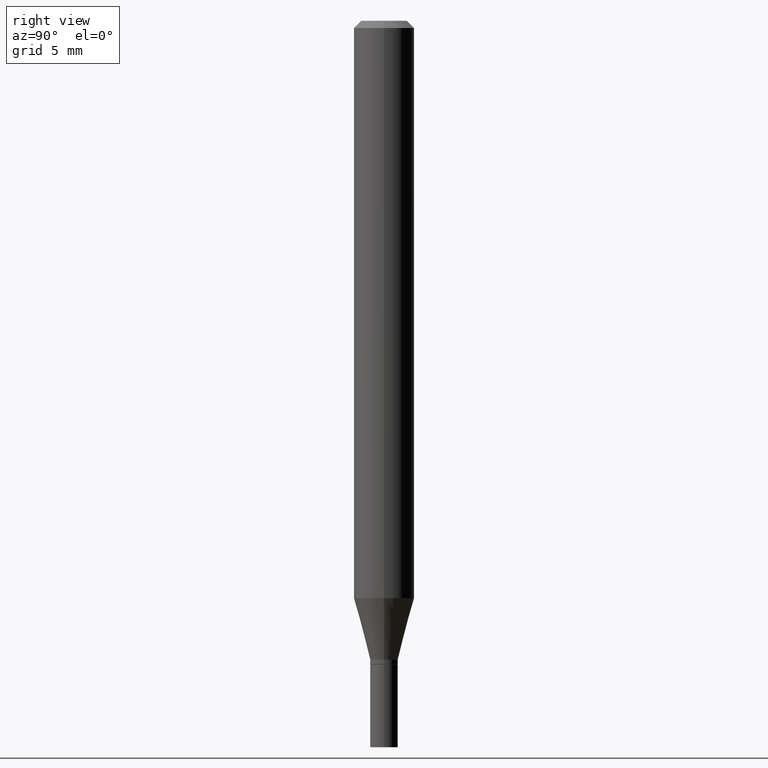
[diagram: clean part render]
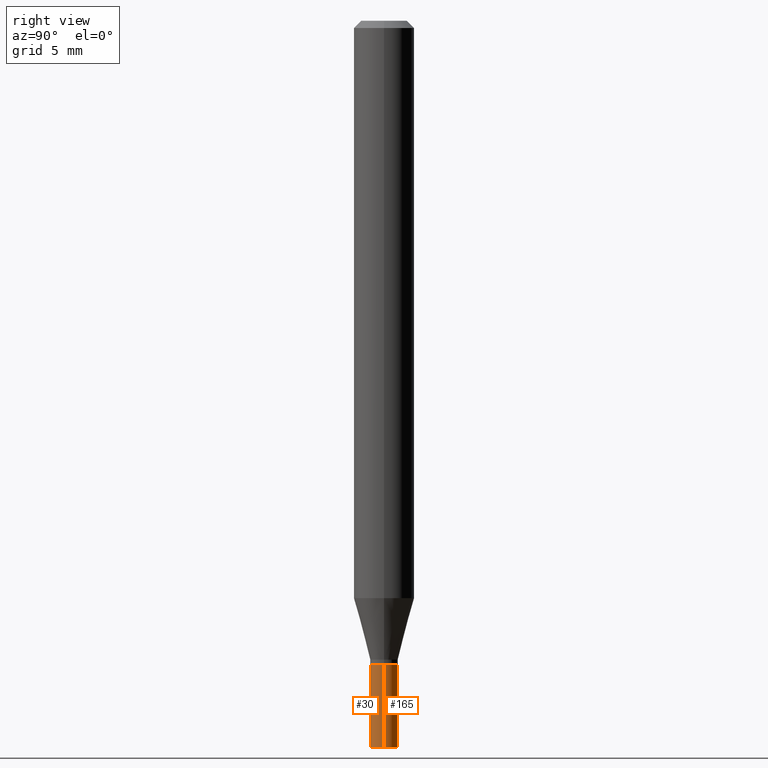
[diagram: same view with one multi-face feature highlighted, each face labeled with its STEP entity id]
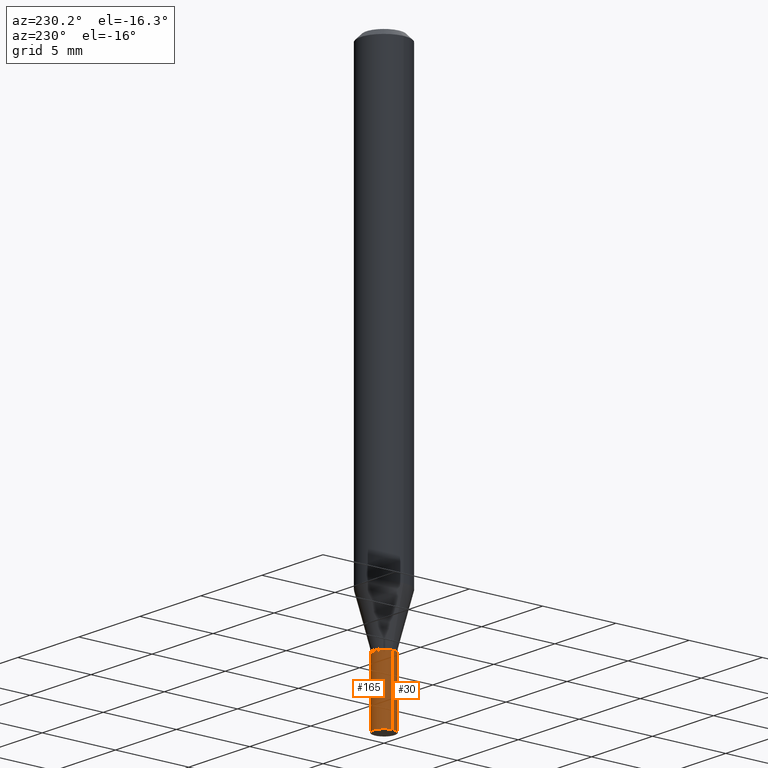
[diagram: same view with one multi-face feature highlighted, each face labeled with its STEP entity id]
A machine part, right view. The highlighted faces form ONE feature: a constant-radius fillet chain: 2 tangent blend faces with common blend radius 0.7239 mm. The faces share edges in the B-rep.
A second angle (auxiliary view) of the same feature is appended — it is thin or edge-on in the first view.
Their STEP definitions:
[1] entity #30 (Cylinder):
#20 = DIRECTION ( 'NONE',  ( -2.445468806185136877E-29, 3.491481338843145188E-15, 1.000000000000000000 ) ) ;
#30 = ADVANCED_FACE ( 'NONE', ( #298 ), #156, .T. ) ;
#55 = LINE ( 'NONE', #238, #309 ) ;
#63 = DIRECTION ( 'NONE',  ( -2.445468806185136877E-29, 3.491481338843145188E-15, 1.000000000000000000 ) ) ;
#64 = VERTEX_POINT ( 'NONE', #263 ) ;
#66 = CARTESIAN_POINT ( 'NONE',  ( 0.02850000000000000103, -5.436236444578777472E-15, -1.500000000000000222 ) ) ;
#80 = ORIENTED_EDGE ( 'NONE', *, *, #170, .T. ) ;
#86 = CIRCLE ( 'NONE', #455, 0.02850000000000000103 ) ;
#87 = VECTOR ( 'NONE', #63, 39.37007874015748143 ) ;
#96 = CARTESIAN_POINT ( 'NONE',  ( 3.250028043420046945E-29, -4.640178699322541079E-15, -1.329000000000000181 ) ) ;
#112 = ORIENTED_EDGE ( 'NONE', *, *, #385, .F. ) ;
#134 = DIRECTION ( 'NONE',  ( -2.445468806185136597E-29, 3.491481338843145583E-15, 1.000000000000000000 ) ) ;
#138 = VERTEX_POINT ( 'NONE', #384 ) ;
#145 = CARTESIAN_POINT ( 'NONE',  ( -0.02850000000000000103, 2.025046796916285603E-16, -1.401896500722648086E-30 ) ) ;
#156 = CYLINDRICAL_SURFACE ( 'NONE', #332, 0.02850000000000000103 ) ;
#164 = DIRECTION ( 'NONE',  ( -2.445468806185136597E-29, 3.491481338843145583E-15, 1.000000000000000000 ) ) ;
#170 = EDGE_CURVE ( 'NONE', #64, #400, #86, .T. ) ;
#183 = EDGE_CURVE ( 'NONE', #400, #387, #55, .T. ) ;
#220 = EDGE_CURVE ( 'NONE', #138, #387, #378, .T. ) ;
#238 = CARTESIAN_POINT ( 'NONE',  ( 0.02850000000000000103, -1.990144363140586052E-16, 1.389710381101841869E-30 ) ) ;
#263 = CARTESIAN_POINT ( 'NONE',  ( -0.02850000000000000103, -4.736195674102000895E-15, -1.500000000000000222 ) ) ;
#280 = ORIENTED_EDGE ( 'NONE', *, *, #183, .T. ) ;
#298 = FACE_OUTER_BOUND ( 'NONE', #361, .T. ) ;
#309 = VECTOR ( 'NONE', #20, 39.37007874015748143 ) ;
#313 = CARTESIAN_POINT ( 'NONE',  ( 3.668203209277704895E-29, -5.237222008264718177E-15, -1.500000000000000222 ) ) ;
#332 = AXIS2_PLACEMENT_3D ( 'NONE', #445, #443, #408 ) ;
#344 = AXIS2_PLACEMENT_3D ( 'NONE', #96, #164, #458 ) ;
#355 = CARTESIAN_POINT ( 'NONE',  ( 0.02850000000000000103, -4.839193135636600375E-15, -1.329000000000000181 ) ) ;
#361 = EDGE_LOOP ( 'NONE', ( #112, #80, #280, #398 ) ) ;
#377 = DIRECTION ( 'NONE',  ( 1.000000000000000000, -6.982962677686280910E-15, 0.000000000000000000 ) ) ;
#378 = CIRCLE ( 'NONE', #344, 0.02850000000000000103 ) ;
#384 = CARTESIAN_POINT ( 'NONE',  ( -0.02850000000000000103, -4.736195674102000895E-15, -1.329000000000000181 ) ) ;
#385 = EDGE_CURVE ( 'NONE', #64, #138, #389, .T. ) ;
#387 = VERTEX_POINT ( 'NONE', #355 ) ;
#389 = LINE ( 'NONE', #145, #87 ) ;
#398 = ORIENTED_EDGE ( 'NONE', *, *, #220, .F. ) ;
#400 = VERTEX_POINT ( 'NONE', #66 ) ;
#408 = DIRECTION ( 'NONE',  ( 1.000000000000000000, -6.982962677686266711E-15, 4.876176775795936353E-29 ) ) ;
#443 = DIRECTION ( 'NONE',  ( -2.445468806185136597E-29, 3.491481338843145583E-15, 1.000000000000000000 ) ) ;
#445 = CARTESIAN_POINT ( 'NONE',  ( 0.000000000000000000, 0.000000000000000000, 0.000000000000000000 ) ) ;
#455 = AXIS2_PLACEMENT_3D ( 'NONE', #313, #134, #377 ) ;
#458 = DIRECTION ( 'NONE',  ( 1.000000000000000000, -6.982962677686280910E-15, 0.000000000000000000 ) ) ;
[2] entity #165 (Cylinder):
#3 = AXIS2_PLACEMENT_3D ( 'NONE', #456, #233, #277 ) ;
#7 = ORIENTED_EDGE ( 'NONE', *, *, #49, .F. ) ;
#9 = DIRECTION ( 'NONE',  ( 1.000000000000000000, -6.982962677686280910E-15, 0.000000000000000000 ) ) ;
#20 = DIRECTION ( 'NONE',  ( -2.445468806185136877E-29, 3.491481338843145188E-15, 1.000000000000000000 ) ) ;
#36 = AXIS2_PLACEMENT_3D ( 'NONE', #152, #294, #226 ) ;
#47 = EDGE_CURVE ( 'NONE', #400, #64, #461, .T. ) ;
#49 = EDGE_CURVE ( 'NONE', #387, #138, #239, .T. ) ;
#55 = LINE ( 'NONE', #238, #309 ) ;
#62 = CYLINDRICAL_SURFACE ( 'NONE', #3, 0.02850000000000000103 ) ;
#63 = DIRECTION ( 'NONE',  ( -2.445468806185136877E-29, 3.491481338843145188E-15, 1.000000000000000000 ) ) ;
#64 = VERTEX_POINT ( 'NONE', #263 ) ;
#66 = CARTESIAN_POINT ( 'NONE',  ( 0.02850000000000000103, -5.436236444578777472E-15, -1.500000000000000222 ) ) ;
#87 = VECTOR ( 'NONE', #63, 39.37007874015748143 ) ;
#98 = ORIENTED_EDGE ( 'NONE', *, *, #47, .T. ) ;
#115 = DIRECTION ( 'NONE',  ( -2.445468806185136597E-29, 3.491481338843145583E-15, 1.000000000000000000 ) ) ;
#138 = VERTEX_POINT ( 'NONE', #384 ) ;
#145 = CARTESIAN_POINT ( 'NONE',  ( -0.02850000000000000103, 2.025046796916285603E-16, -1.401896500722648086E-30 ) ) ;
#152 = CARTESIAN_POINT ( 'NONE',  ( 3.250028043420046945E-29, -4.640178699322541079E-15, -1.329000000000000181 ) ) ;
#165 = ADVANCED_FACE ( 'NONE', ( #347 ), #62, .T. ) ;
#183 = EDGE_CURVE ( 'NONE', #400, #387, #55, .T. ) ;
#226 = DIRECTION ( 'NONE',  ( 1.000000000000000000, -6.982962677686280910E-15, 0.000000000000000000 ) ) ;
#233 = DIRECTION ( 'NONE',  ( -2.445468806185136597E-29, 3.491481338843145583E-15, 1.000000000000000000 ) ) ;
#238 = CARTESIAN_POINT ( 'NONE',  ( 0.02850000000000000103, -1.990144363140586052E-16, 1.389710381101841869E-30 ) ) ;
#239 = CIRCLE ( 'NONE', #36, 0.02850000000000000103 ) ;
#263 = CARTESIAN_POINT ( 'NONE',  ( -0.02850000000000000103, -4.736195674102000895E-15, -1.500000000000000222 ) ) ;
#277 = DIRECTION ( 'NONE',  ( 1.000000000000000000, -6.982962677686266711E-15, 4.876176775795936353E-29 ) ) ;
#294 = DIRECTION ( 'NONE',  ( -2.445468806185136597E-29, 3.491481338843145583E-15, 1.000000000000000000 ) ) ;
#309 = VECTOR ( 'NONE', #20, 39.37007874015748143 ) ;
#316 = EDGE_LOOP ( 'NONE', ( #98, #320, #7, #374 ) ) ;
#320 = ORIENTED_EDGE ( 'NONE', *, *, #385, .T. ) ;
#331 = AXIS2_PLACEMENT_3D ( 'NONE', #337, #115, #9 ) ;
#337 = CARTESIAN_POINT ( 'NONE',  ( 3.668203209277704895E-29, -5.237222008264718177E-15, -1.500000000000000222 ) ) ;
#347 = FACE_OUTER_BOUND ( 'NONE', #316, .T. ) ;
#355 = CARTESIAN_POINT ( 'NONE',  ( 0.02850000000000000103, -4.839193135636600375E-15, -1.329000000000000181 ) ) ;
#374 = ORIENTED_EDGE ( 'NONE', *, *, #183, .F. ) ;
#384 = CARTESIAN_POINT ( 'NONE',  ( -0.02850000000000000103, -4.736195674102000895E-15, -1.329000000000000181 ) ) ;
#385 = EDGE_CURVE ( 'NONE', #64, #138, #389, .T. ) ;
#387 = VERTEX_POINT ( 'NONE', #355 ) ;
#389 = LINE ( 'NONE', #145, #87 ) ;
#400 = VERTEX_POINT ( 'NONE', #66 ) ;
#456 = CARTESIAN_POINT ( 'NONE',  ( 0.000000000000000000, 0.000000000000000000, 0.000000000000000000 ) ) ;
#461 = CIRCLE ( 'NONE', #331, 0.02850000000000000103 ) ;